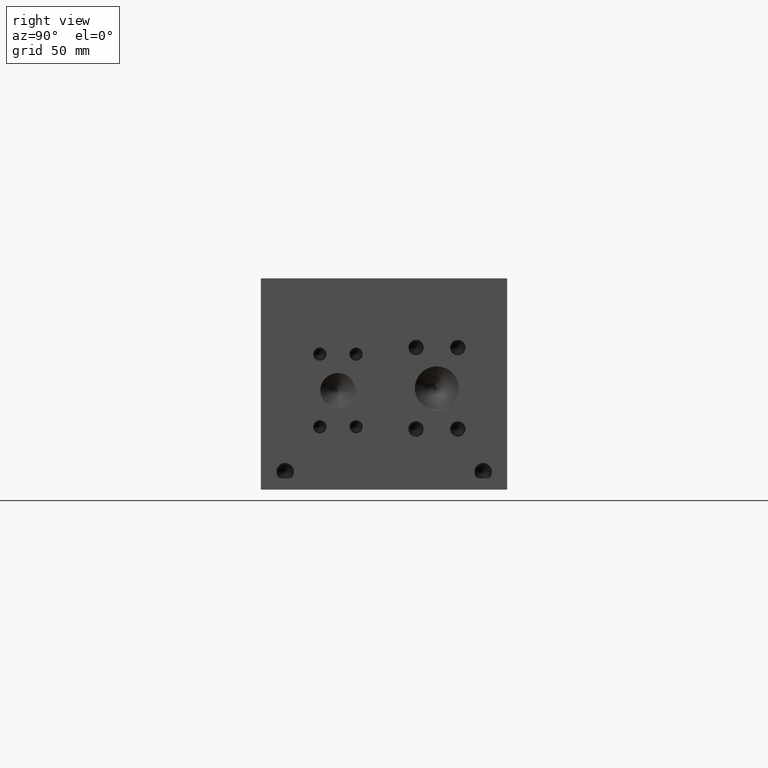
[diagram: clean part render]
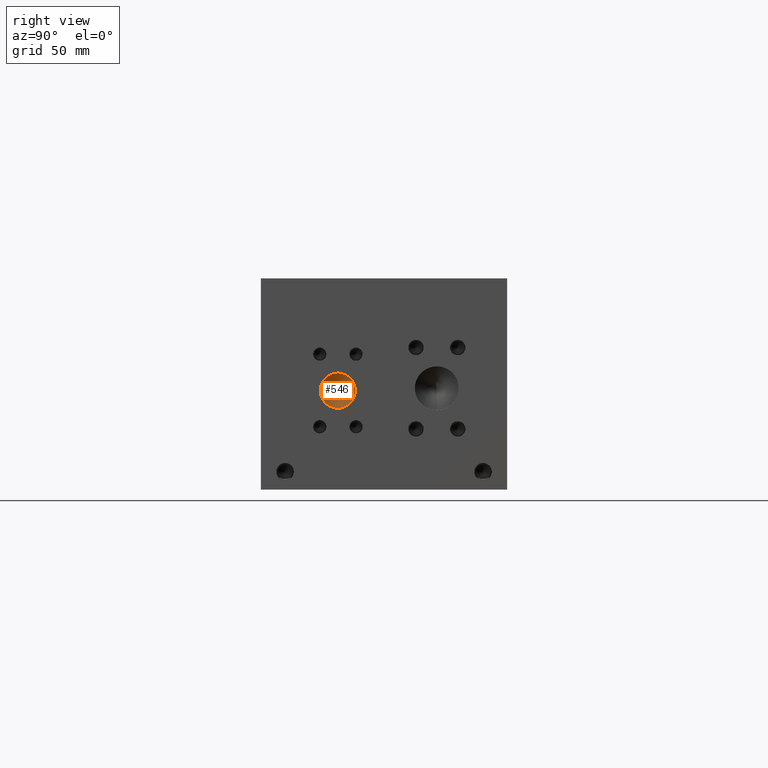
[diagram: same view with one face highlighted and labeled with its STEP entity id]
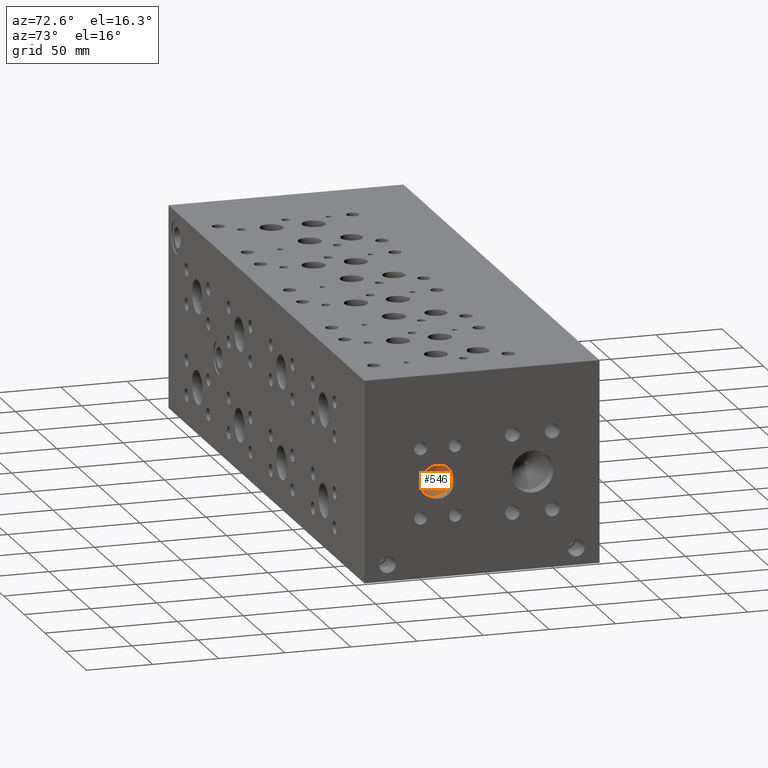
[diagram: same view with one face highlighted and labeled with its STEP entity id]
A machine part, right view. The second image highlights one B-rep face of the part: STEP entity #546.
A second angle (auxiliary view) of the same face is appended — the face is thin or edge-on in the first view.
In plain terms, the highlighted conical surface has half-angle 60 deg.
Its self-contained STEP definition (entity closure, byte-faithful):
#530=CARTESIAN_POINT('',(462.07647739999999,55.575200000000002,71.424800000000005));
#531=DIRECTION('',(1.0,0.0,0.0));
#532=DIRECTION('',(0.0,0.0,-1.0));
#533=AXIS2_PLACEMENT_3D('',#530,#531,#532);
#534=CONICAL_SURFACE('',#533,6.349999999999998,60.000000063301584);
#535=CARTESIAN_POINT('',(465.74265160000004,55.575200000000002,58.724800000000016));
#536=VERTEX_POINT('',#535);
#537=CARTESIAN_POINT('',(465.74265160000004,55.575200000000002,71.424800000000005));
#538=DIRECTION('',(1.0,0.0,0.0));
#539=DIRECTION('',(0.0,0.0,-1.0));
#540=AXIS2_PLACEMENT_3D('',#537,#538,#539);
#541=CIRCLE('',#540,12.699999999999996);
#542=EDGE_CURVE('',#536,#536,#541,.T.);
#543=ORIENTED_EDGE('',*,*,#542,.T.);
#544=EDGE_LOOP('',(#543));
#545=FACE_OUTER_BOUND('',#544,.T.);
#546=ADVANCED_FACE('',(#545),#534,.F.);